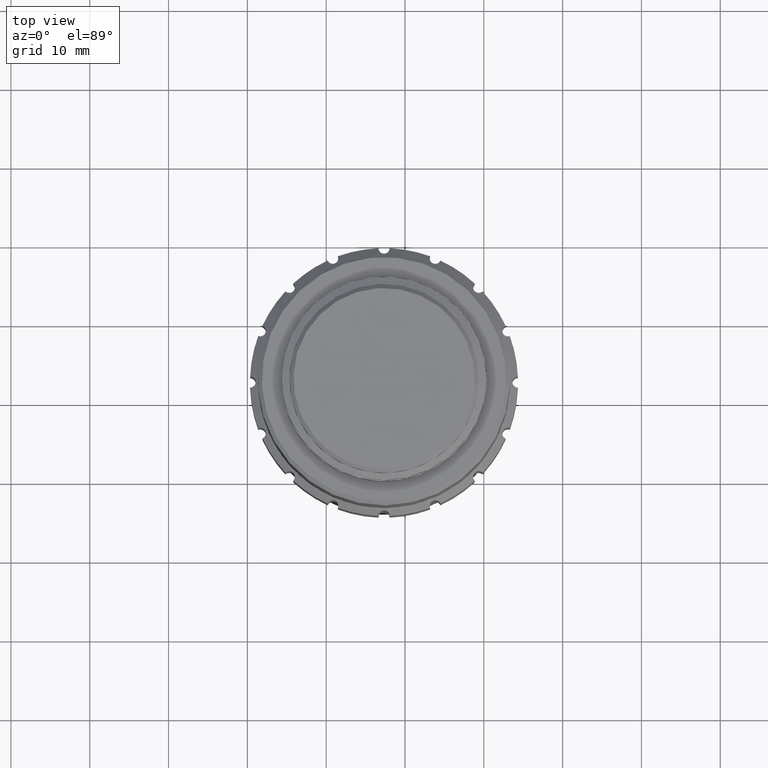
[diagram: clean part render]
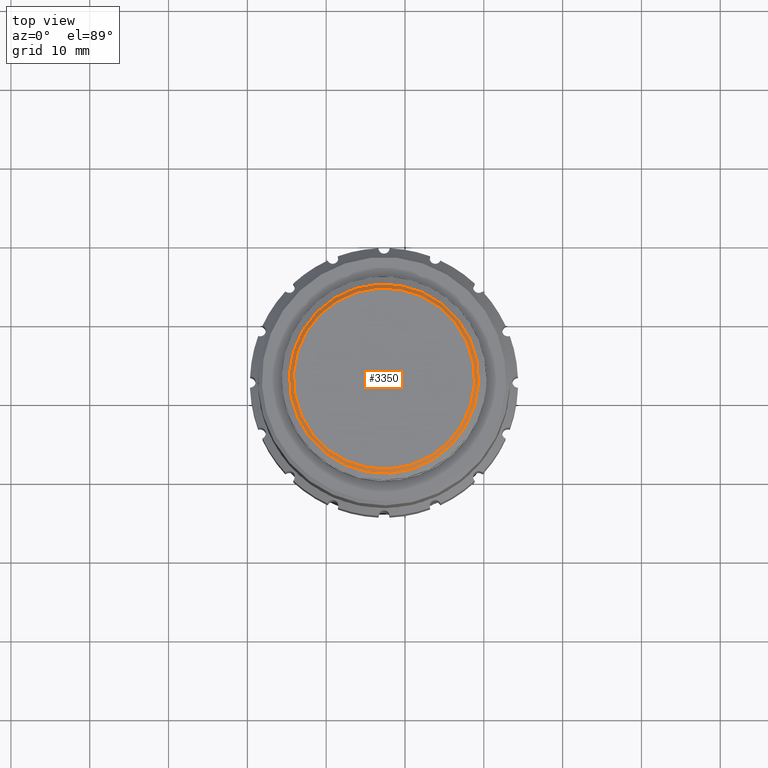
[diagram: same view with one face highlighted and labeled with its STEP entity id]
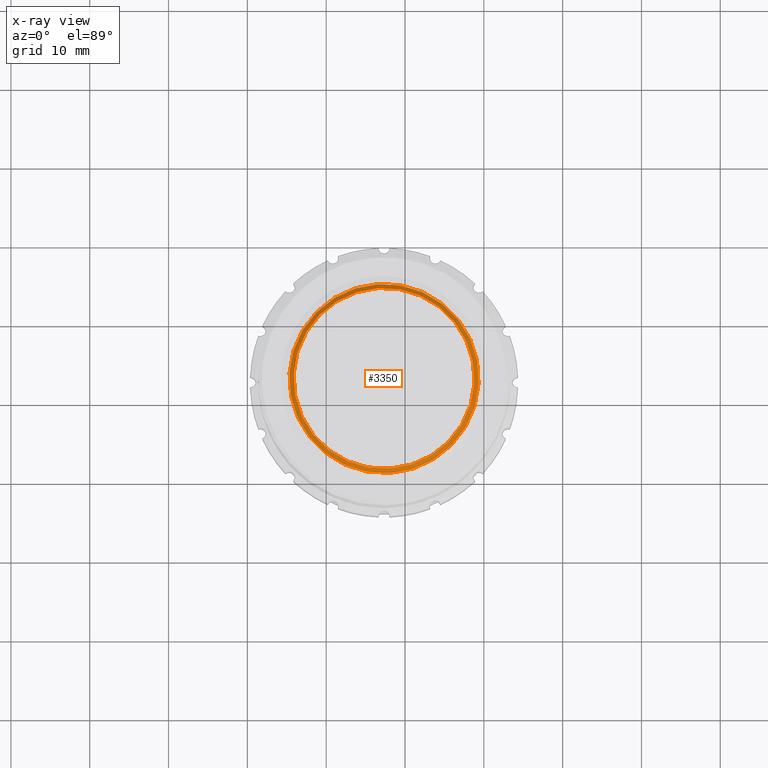
[diagram: x-ray of the same camera — body ghosted, the highlighted face saturated]
A machine part, top view. The second image highlights one B-rep face of the part: STEP entity #3350.
The next image is the same camera in x-ray: the body ghosted, the highlighted face saturated — about 0% of this face is hidden behind the body in this view.
In plain terms, the highlighted conical surface has half-angle 45 deg.
Its self-contained STEP definition (entity closure, byte-faithful):
#498 = CONICAL_SURFACE ( 'NONE', #10901, 11.50000000000001599, 0.7853981633974482790 ) ;
#1788 = DIRECTION ( 'NONE',  ( -0.000000000000000000, -0.000000000000000000, -1.000000000000000000 ) ) ;
#2060 = DIRECTION ( 'NONE',  ( 0.9984986589527604650, -0.05477616333350729394, 0.000000000000000000 ) ) ;
#2807 = AXIS2_PLACEMENT_3D ( 'NONE', #12422, #10844, #3688 ) ;
#3350 = ADVANCED_FACE ( 'NONE', ( #6822, #4022 ), #498, .T. ) ;
#3563 = CARTESIAN_POINT ( 'NONE',  ( -122.6630341068842824, 22.01530283243863906, 31.59225607790694568 ) ) ;
#3688 = DIRECTION ( 'NONE',  ( 0.9984986589527603540, -0.05477616333350738415, 0.000000000000000000 ) ) ;
#4022 = FACE_OUTER_BOUND ( 'NONE', #16131, .T. ) ;
#4984 = CARTESIAN_POINT ( 'NONE',  ( -111.1802995289275344, 21.38537695410330386, 32.09225607790694568 ) ) ;
#5446 = CIRCLE ( 'NONE', #11081, 12.00000000000000533 ) ;
#6594 = EDGE_CURVE ( 'NONE', #14555, #14555, #5446, .T. ) ;
#6822 = FACE_BOUND ( 'NONE', #8769, .T. ) ;
#8461 = CIRCLE ( 'NONE', #2807, 11.50000000000000178 ) ;
#8769 = EDGE_LOOP ( 'NONE', ( #10894 ) ) ;
#9324 = DIRECTION ( 'NONE',  ( 0.000000000000000000, 0.000000000000000000, -1.000000000000000000 ) ) ;
#9692 = CARTESIAN_POINT ( 'NONE',  ( -122.6630341068842824, 22.01530283243863906, 32.09225607790694568 ) ) ;
#10728 = EDGE_CURVE ( 'NONE', #17504, #17504, #8461, .T. ) ;
#10844 = DIRECTION ( 'NONE',  ( 0.000000000000000000, 0.000000000000000000, 1.000000000000000000 ) ) ;
#10894 = ORIENTED_EDGE ( 'NONE', *, *, #10728, .F. ) ;
#10901 = AXIS2_PLACEMENT_3D ( 'NONE', #9692, #9324, #15257 ) ;
#11081 = AXIS2_PLACEMENT_3D ( 'NONE', #3563, #1788, #2060 ) ;
#12422 = CARTESIAN_POINT ( 'NONE',  ( -122.6630341068842824, 22.01530283243863906, 32.09225607790694568 ) ) ;
#14555 = VERTEX_POINT ( 'NONE', #14919 ) ;
#14919 = CARTESIAN_POINT ( 'NONE',  ( -110.6810501994511498, 21.35798887243655031, 31.59225607790694568 ) ) ;
#15257 = DIRECTION ( 'NONE',  ( -0.9984986589527603540, 0.05477616333350731476, 0.000000000000000000 ) ) ;
#16131 = EDGE_LOOP ( 'NONE', ( #17954 ) ) ;
#17504 = VERTEX_POINT ( 'NONE', #4984 ) ;
#17954 = ORIENTED_EDGE ( 'NONE', *, *, #6594, .F. ) ;